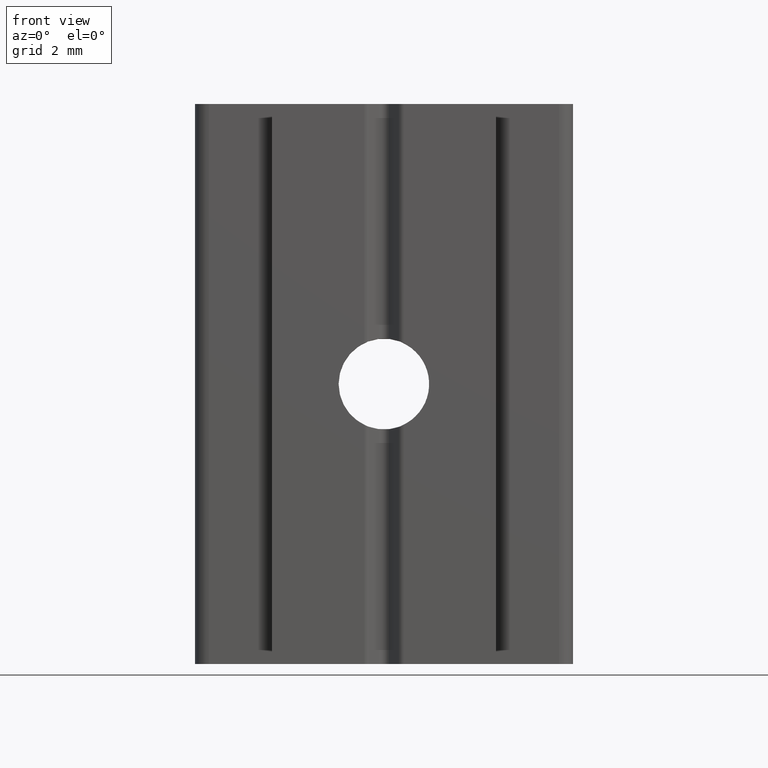
[diagram: clean part render]
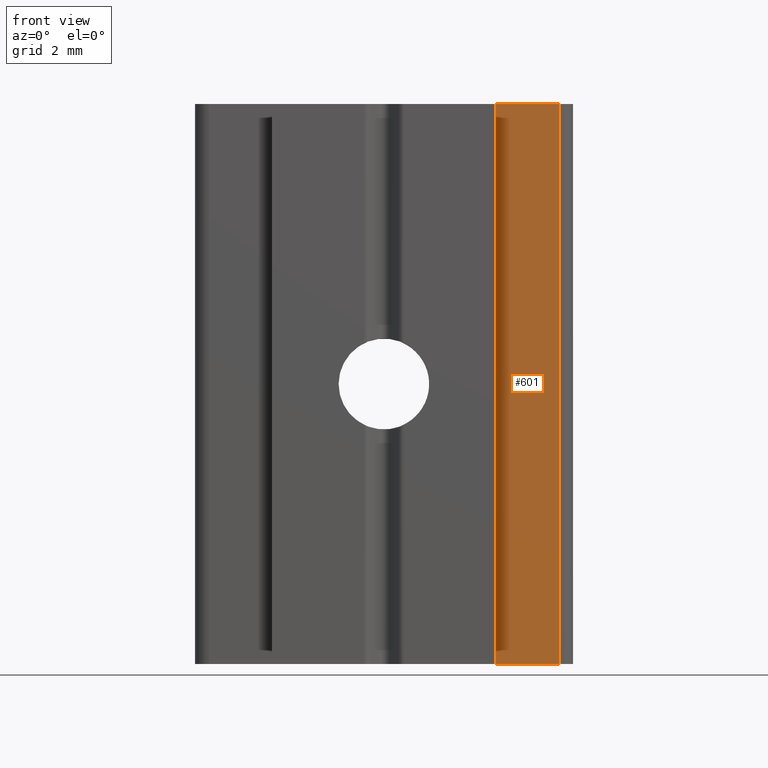
[diagram: same view with one face highlighted and labeled with its STEP entity id]
A machine part, front view. The second image highlights one B-rep face of the part: STEP entity #601.
In plain terms, the highlighted planar face has unit normal (0, -1, 0).
Its self-contained STEP definition (entity closure, byte-faithful):
#31=PLANE('',#678);
#61=FACE_OUTER_BOUND('',#92,.T.);
#92=EDGE_LOOP('',(#534,#535,#536,#537));
#134=LINE('',#1006,#189);
#136=LINE('',#1010,#191);
#157=LINE('',#1063,#212);
#158=LINE('',#1065,#213);
#189=VECTOR('',#782,10.);
#191=VECTOR('',#786,10.);
#212=VECTOR('',#845,10.);
#213=VECTOR('',#848,10.);
#280=VERTEX_POINT('',#1003);
#281=VERTEX_POINT('',#1005);
#282=VERTEX_POINT('',#1009);
#295=VERTEX_POINT('',#1061);
#353=EDGE_CURVE('',#280,#281,#134,.T.);
#355=EDGE_CURVE('',#282,#281,#136,.T.);
#382=EDGE_CURVE('',#280,#295,#157,.T.);
#383=EDGE_CURVE('',#282,#295,#158,.T.);
#534=ORIENTED_EDGE('',*,*,#382,.T.);
#535=ORIENTED_EDGE('',*,*,#383,.F.);
#536=ORIENTED_EDGE('',*,*,#355,.T.);
#537=ORIENTED_EDGE('',*,*,#353,.F.);
#601=ADVANCED_FACE('',(#61),#31,.T.);
#678=AXIS2_PLACEMENT_3D('',#1064,#846,#847);
#782=DIRECTION('',(-1.,0.,0.));
#786=DIRECTION('',(0.,0.,-1.));
#845=DIRECTION('',(0.,0.,1.));
#846=DIRECTION('center_axis',(0.,-1.,0.));
#847=DIRECTION('ref_axis',(1.,0.,0.));
#848=DIRECTION('',(1.,0.,0.));
#1003=CARTESIAN_POINT('',(6.25,0.,-10.));
#1005=CARTESIAN_POINT('',(4.,0.,-10.));
#1006=CARTESIAN_POINT('',(4.,0.,-10.));
#1009=CARTESIAN_POINT('',(4.,0.,10.));
#1010=CARTESIAN_POINT('',(4.,0.,0.));
#1061=CARTESIAN_POINT('',(6.25,0.,10.));
#1063=CARTESIAN_POINT('',(6.25,0.,0.));
#1064=CARTESIAN_POINT('Origin',(4.,0.,0.));
#1065=CARTESIAN_POINT('',(4.,0.,10.));